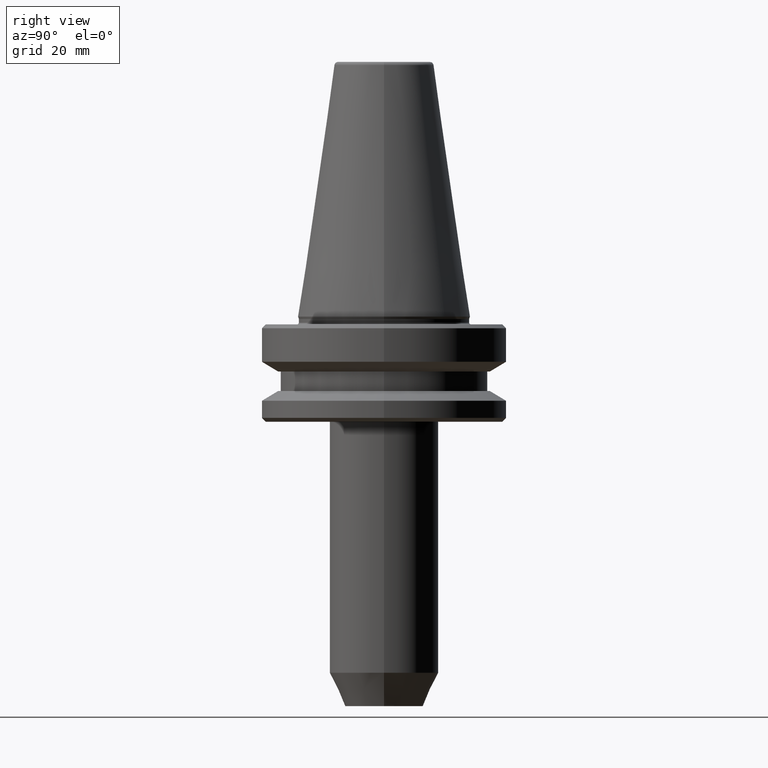
[diagram: clean part render]
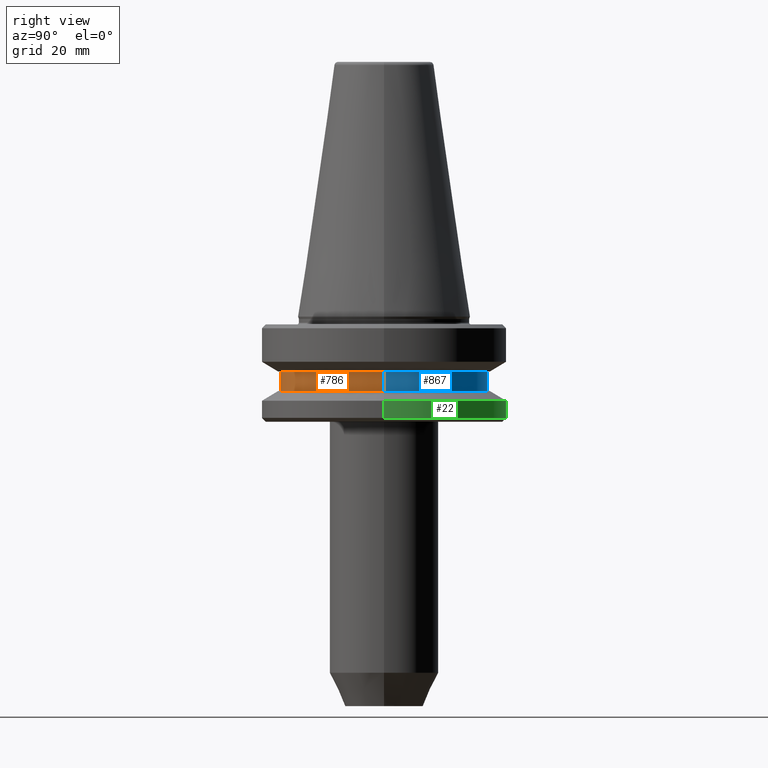
[diagram: same view with three faces highlighted in distinct colors, each labeled with its STEP entity id]
A machine part, right view with three faces highlighted in distinct colors.
Their STEP definitions:

[orange] entity #786 — the highlighted cylindrical surface (partial cylindrical patch) has radius 26.5 mm, axis along (-0, -0, 1).
#27 = VERTEX_POINT ( 'NONE', #380 ) ;
#48 = VERTEX_POINT ( 'NONE', #326 ) ;
#51 = DIRECTION ( 'NONE',  ( 1.000000000000000000, 0.0000000000000000000, 0.0000000000000000000 ) ) ;
#57 = EDGE_CURVE ( 'NONE', #48, #154, #90, .T. ) ;
#58 = DIRECTION ( 'NONE',  ( 1.000000000000000000, 0.0000000000000000000, 0.0000000000000000000 ) ) ;
#79 = DIRECTION ( 'NONE',  ( -0.0000000000000000000, -0.0000000000000000000, 1.000000000000000000 ) ) ;
#90 = CIRCLE ( 'NONE', #1000, 26.50000000000013500 ) ;
#128 = CARTESIAN_POINT ( 'NONE',  ( -26.50000000000013500, 3.245314017740502300E-015, 81.16727785008510000 ) ) ;
#154 = VERTEX_POINT ( 'NONE', #156 ) ;
#156 = CARTESIAN_POINT ( 'NONE',  ( 26.50000000000013500, 0.0000000000000000000, -14.09999999999966700 ) ) ;
#166 = CYLINDRICAL_SURFACE ( 'NONE', #897, 26.50000000000013500 ) ;
#224 = DIRECTION ( 'NONE',  ( 1.000000000000000000, 0.0000000000000000000, 0.0000000000000000000 ) ) ;
#225 = LINE ( 'NONE', #803, #237 ) ;
#229 = EDGE_CURVE ( 'NONE', #27, #48, #915, .T. ) ;
#237 = VECTOR ( 'NONE', #501, 1000.000000000000000 ) ;
#256 = ORIENTED_EDGE ( 'NONE', *, *, #598, .T. ) ;
#326 = CARTESIAN_POINT ( 'NONE',  ( -26.50000000000013500, 3.245314017740502300E-015, -14.09999999999966700 ) ) ;
#380 = CARTESIAN_POINT ( 'NONE',  ( -26.50000000000013500, 3.245314017740502300E-015, -19.10000000000011500 ) ) ;
#391 = FACE_OUTER_BOUND ( 'NONE', #840, .T. ) ;
#485 = ORIENTED_EDGE ( 'NONE', *, *, #57, .F. ) ;
#501 = DIRECTION ( 'NONE',  ( -0.0000000000000000000, -0.0000000000000000000, 1.000000000000000000 ) ) ;
#507 = DIRECTION ( 'NONE',  ( -0.0000000000000000000, -0.0000000000000000000, 1.000000000000000000 ) ) ;
#512 = VERTEX_POINT ( 'NONE', #945 ) ;
#528 = ORIENTED_EDGE ( 'NONE', *, *, #229, .F. ) ;
#570 = CIRCLE ( 'NONE', #970, 26.50000000000013500 ) ;
#582 = CARTESIAN_POINT ( 'NONE',  ( 0.0000000000000000000, 0.0000000000000000000, -14.09999999999966700 ) ) ;
#598 = EDGE_CURVE ( 'NONE', #512, #154, #225, .T. ) ;
#687 = DIRECTION ( 'NONE',  ( -0.0000000000000000000, -0.0000000000000000000, 1.000000000000000000 ) ) ;
#774 = ORIENTED_EDGE ( 'NONE', *, *, #837, .T. ) ;
#786 = ADVANCED_FACE ( 'NONE', ( #391 ), #166, .T. ) ;
#803 = CARTESIAN_POINT ( 'NONE',  ( 26.50000000000013500, 0.0000000000000000000, 81.16727785008510000 ) ) ;
#837 = EDGE_CURVE ( 'NONE', #27, #512, #570, .T. ) ;
#840 = EDGE_LOOP ( 'NONE', ( #528, #774, #256, #485 ) ) ;
#883 = CARTESIAN_POINT ( 'NONE',  ( 0.0000000000000000000, 0.0000000000000000000, 81.16727785008510000 ) ) ;
#890 = VECTOR ( 'NONE', #687, 1000.000000000000000 ) ;
#897 = AXIS2_PLACEMENT_3D ( 'NONE', #883, #507, #58 ) ;
#898 = CARTESIAN_POINT ( 'NONE',  ( 0.0000000000000000000, 0.0000000000000000000, -19.10000000000011500 ) ) ;
#915 = LINE ( 'NONE', #128, #890 ) ;
#945 = CARTESIAN_POINT ( 'NONE',  ( 26.50000000000013500, 0.0000000000000000000, -19.10000000000011500 ) ) ;
#963 = DIRECTION ( 'NONE',  ( -0.0000000000000000000, -0.0000000000000000000, 1.000000000000000000 ) ) ;
#970 = AXIS2_PLACEMENT_3D ( 'NONE', #898, #963, #224 ) ;
#1000 = AXIS2_PLACEMENT_3D ( 'NONE', #582, #79, #51 ) ;

[blue] entity #867 — the highlighted cylindrical surface (partial cylindrical patch) has radius 26.5 mm, axis along (-0, -0, 1).
#5 = EDGE_LOOP ( 'NONE', ( #762, #470, #59, #627 ) ) ;
#27 = VERTEX_POINT ( 'NONE', #380 ) ;
#32 = AXIS2_PLACEMENT_3D ( 'NONE', #231, #930, #211 ) ;
#48 = VERTEX_POINT ( 'NONE', #326 ) ;
#59 = ORIENTED_EDGE ( 'NONE', *, *, #499, .F. ) ;
#128 = CARTESIAN_POINT ( 'NONE',  ( -26.50000000000013500, 3.245314017740502300E-015, 81.16727785008510000 ) ) ;
#154 = VERTEX_POINT ( 'NONE', #156 ) ;
#156 = CARTESIAN_POINT ( 'NONE',  ( 26.50000000000013500, 0.0000000000000000000, -14.09999999999966700 ) ) ;
#211 = DIRECTION ( 'NONE',  ( 1.000000000000000000, 0.0000000000000000000, 0.0000000000000000000 ) ) ;
#225 = LINE ( 'NONE', #803, #237 ) ;
#229 = EDGE_CURVE ( 'NONE', #27, #48, #915, .T. ) ;
#231 = CARTESIAN_POINT ( 'NONE',  ( 0.0000000000000000000, 0.0000000000000000000, 81.16727785008510000 ) ) ;
#237 = VECTOR ( 'NONE', #501, 1000.000000000000000 ) ;
#292 = CARTESIAN_POINT ( 'NONE',  ( 0.0000000000000000000, 0.0000000000000000000, -19.10000000000011500 ) ) ;
#326 = CARTESIAN_POINT ( 'NONE',  ( -26.50000000000013500, 3.245314017740502300E-015, -14.09999999999966700 ) ) ;
#336 = FACE_OUTER_BOUND ( 'NONE', #5, .T. ) ;
#380 = CARTESIAN_POINT ( 'NONE',  ( -26.50000000000013500, 3.245314017740502300E-015, -19.10000000000011500 ) ) ;
#470 = ORIENTED_EDGE ( 'NONE', *, *, #229, .T. ) ;
#499 = EDGE_CURVE ( 'NONE', #154, #48, #634, .T. ) ;
#501 = DIRECTION ( 'NONE',  ( -0.0000000000000000000, -0.0000000000000000000, 1.000000000000000000 ) ) ;
#512 = VERTEX_POINT ( 'NONE', #945 ) ;
#598 = EDGE_CURVE ( 'NONE', #512, #154, #225, .T. ) ;
#627 = ORIENTED_EDGE ( 'NONE', *, *, #598, .F. ) ;
#634 = CIRCLE ( 'NONE', #882, 26.50000000000013500 ) ;
#642 = CARTESIAN_POINT ( 'NONE',  ( 0.0000000000000000000, 0.0000000000000000000, -14.09999999999966700 ) ) ;
#687 = DIRECTION ( 'NONE',  ( -0.0000000000000000000, -0.0000000000000000000, 1.000000000000000000 ) ) ;
#706 = DIRECTION ( 'NONE',  ( 1.000000000000000000, 0.0000000000000000000, 0.0000000000000000000 ) ) ;
#717 = CYLINDRICAL_SURFACE ( 'NONE', #32, 26.50000000000013500 ) ;
#741 = CIRCLE ( 'NONE', #783, 26.50000000000013500 ) ;
#762 = ORIENTED_EDGE ( 'NONE', *, *, #804, .T. ) ;
#783 = AXIS2_PLACEMENT_3D ( 'NONE', #292, #862, #706 ) ;
#803 = CARTESIAN_POINT ( 'NONE',  ( 26.50000000000013500, 0.0000000000000000000, 81.16727785008510000 ) ) ;
#804 = EDGE_CURVE ( 'NONE', #512, #27, #741, .T. ) ;
#862 = DIRECTION ( 'NONE',  ( -0.0000000000000000000, -0.0000000000000000000, 1.000000000000000000 ) ) ;
#866 = DIRECTION ( 'NONE',  ( 1.000000000000000000, 0.0000000000000000000, 0.0000000000000000000 ) ) ;
#867 = ADVANCED_FACE ( 'NONE', ( #336 ), #717, .T. ) ;
#882 = AXIS2_PLACEMENT_3D ( 'NONE', #642, #939, #866 ) ;
#890 = VECTOR ( 'NONE', #687, 1000.000000000000000 ) ;
#915 = LINE ( 'NONE', #128, #890 ) ;
#930 = DIRECTION ( 'NONE',  ( -0.0000000000000000000, -0.0000000000000000000, 1.000000000000000000 ) ) ;
#939 = DIRECTION ( 'NONE',  ( -0.0000000000000000000, -0.0000000000000000000, 1.000000000000000000 ) ) ;
#945 = CARTESIAN_POINT ( 'NONE',  ( 26.50000000000013500, 0.0000000000000000000, -19.10000000000011500 ) ) ;

[green] entity #22 — the highlighted cylindrical surface (partial cylindrical patch) has radius 31.5 mm, axis along (-0, -0, 1).
#15 = ORIENTED_EDGE ( 'NONE', *, *, #301, .F. ) ;
#19 = CARTESIAN_POINT ( 'NONE',  ( -31.49999999999986100, 3.857637417314145300E-015, -21.60014200631687900 ) ) ;
#22 = ADVANCED_FACE ( 'NONE', ( #492 ), #461, .T. ) ;
#63 = DIRECTION ( 'NONE',  ( -0.0000000000000000000, -0.0000000000000000000, 1.000000000000000000 ) ) ;
#80 = EDGE_CURVE ( 'NONE', #445, #752, #961, .T. ) ;
#91 = VECTOR ( 'NONE', #327, 1000.000000000000000 ) ;
#94 = AXIS2_PLACEMENT_3D ( 'NONE', #622, #475, #693 ) ;
#124 = AXIS2_PLACEMENT_3D ( 'NONE', #544, #63, #465 ) ;
#158 = CARTESIAN_POINT ( 'NONE',  ( -31.49999999999986100, 3.857637417314145300E-015, 81.16727785008510000 ) ) ;
#161 = EDGE_CURVE ( 'NONE', #469, #418, #848, .T. ) ;
#172 = CARTESIAN_POINT ( 'NONE',  ( 31.49999999999986100, 0.0000000000000000000, -25.99999999999980100 ) ) ;
#191 = ORIENTED_EDGE ( 'NONE', *, *, #161, .F. ) ;
#301 = EDGE_CURVE ( 'NONE', #445, #469, #551, .T. ) ;
#327 = DIRECTION ( 'NONE',  ( -0.0000000000000000000, -0.0000000000000000000, 1.000000000000000000 ) ) ;
#385 = ORIENTED_EDGE ( 'NONE', *, *, #942, .T. ) ;
#399 = CARTESIAN_POINT ( 'NONE',  ( -31.49999999999986100, 3.857637417314145300E-015, -25.99999999999980100 ) ) ;
#418 = VERTEX_POINT ( 'NONE', #19 ) ;
#445 = VERTEX_POINT ( 'NONE', #172 ) ;
#461 = CYLINDRICAL_SURFACE ( 'NONE', #124, 31.49999999999986100 ) ;
#465 = DIRECTION ( 'NONE',  ( 1.000000000000000000, 0.0000000000000000000, 0.0000000000000000000 ) ) ;
#469 = VERTEX_POINT ( 'NONE', #966 ) ;
#475 = DIRECTION ( 'NONE',  ( -0.0000000000000000000, -0.0000000000000000000, 1.000000000000000000 ) ) ;
#492 = FACE_OUTER_BOUND ( 'NONE', #772, .T. ) ;
#523 = VECTOR ( 'NONE', #534, 1000.000000000000000 ) ;
#534 = DIRECTION ( 'NONE',  ( -0.0000000000000000000, -0.0000000000000000000, 1.000000000000000000 ) ) ;
#544 = CARTESIAN_POINT ( 'NONE',  ( 0.0000000000000000000, 0.0000000000000000000, 81.16727785008510000 ) ) ;
#551 = LINE ( 'NONE', #678, #523 ) ;
#596 = AXIS2_PLACEMENT_3D ( 'NONE', #839, #989, #670 ) ;
#615 = ORIENTED_EDGE ( 'NONE', *, *, #80, .T. ) ;
#622 = CARTESIAN_POINT ( 'NONE',  ( 0.0000000000000000000, 0.0000000000000000000, -25.99999999999980100 ) ) ;
#670 = DIRECTION ( 'NONE',  ( 1.000000000000000000, 0.0000000000000000000, 0.0000000000000000000 ) ) ;
#678 = CARTESIAN_POINT ( 'NONE',  ( 31.49999999999986100, 0.0000000000000000000, 81.16727785008510000 ) ) ;
#693 = DIRECTION ( 'NONE',  ( 1.000000000000000000, 0.0000000000000000000, 0.0000000000000000000 ) ) ;
#752 = VERTEX_POINT ( 'NONE', #399 ) ;
#772 = EDGE_LOOP ( 'NONE', ( #615, #385, #191, #15 ) ) ;
#839 = CARTESIAN_POINT ( 'NONE',  ( 0.0000000000000000000, 0.0000000000000000000, -21.60014200631687900 ) ) ;
#848 = CIRCLE ( 'NONE', #596, 31.49999999999986100 ) ;
#895 = LINE ( 'NONE', #158, #91 ) ;
#942 = EDGE_CURVE ( 'NONE', #752, #418, #895, .T. ) ;
#961 = CIRCLE ( 'NONE', #94, 31.49999999999986100 ) ;
#966 = CARTESIAN_POINT ( 'NONE',  ( 31.49999999999986100, 0.0000000000000000000, -21.60014200631687900 ) ) ;
#989 = DIRECTION ( 'NONE',  ( -0.0000000000000000000, -0.0000000000000000000, 1.000000000000000000 ) ) ;